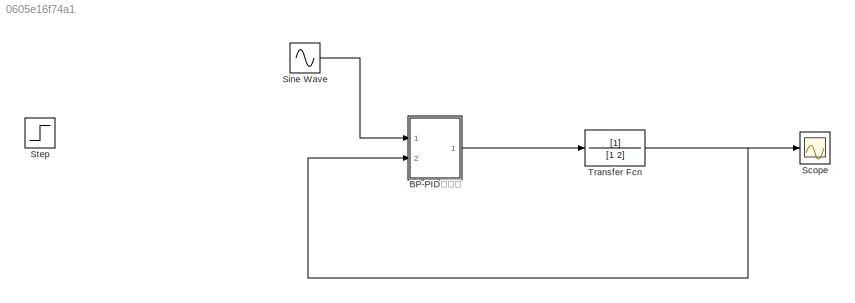
MODEL slx_0605e16f74a1
KIND model
CONFIG AbsTol = auto
CONFIG EnableMultiTasking = on
CONFIG FixedStep = 0.01
CONFIG MaxStep = auto
CONFIG MinStep = auto
CONFIG RelTol = 1e-3
CONFIG SampleTimeConstraint = Unconstrained
CONFIG Solver = FixedStepAuto
CONFIG SolverName = FixedStepAuto
CONFIG StartTime = 0.0
CONFIG StopTime = 500
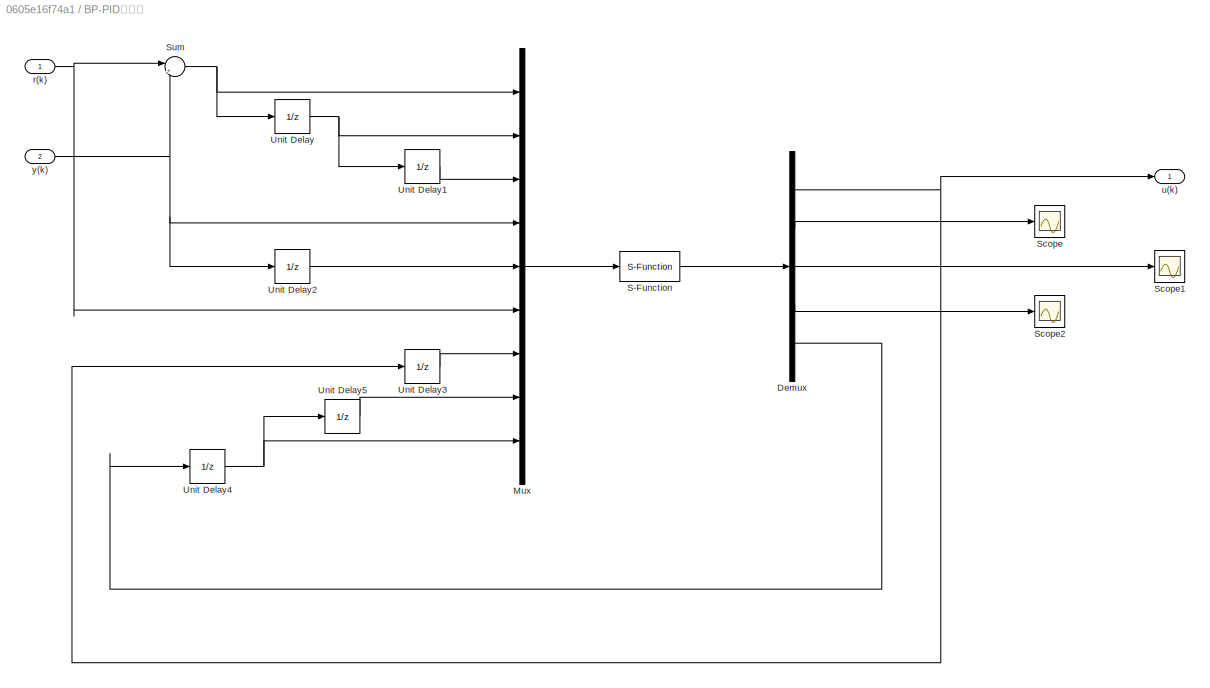
BLOCK [SubSystem] BP-PID控制器
  Ports = [2, 1]
  RequestExecContextInheritance = off
BLOCK [Demux] BP-PID控制器/Demux
  DisplayOption = bar
  Outputs = [1 1 1 1 48]
  Ports = [1, 5]
BLOCK [Mux] BP-PID控制器/Mux
  DisplayOption = bar
  Inputs = 9
  Ports = [9, 1]
BLOCK [S-Function] BP-PID控制器/S-Function
  EnableBusSupport = off
  FunctionName = nnbp
  Parameters = T,nh,xite,alfa
  Ports = [1, 1]
  SFcnIsStateOwnerBlock = off
  SFunctionDeploymentMode = off
BLOCK [Scope] BP-PID控制器/Scope
  Floating = off
  NumInputPorts = 1
  Ports = [1]
  ScopeSpecificationString = Simulink.scopes.TimeScopeBlockCfg('CurrentConfiguration', extmgr.ConfigurationSet(extmgr.Configuration('Core','General UI',true),extmgr.Configuration('Core','Source UI',true),extmgr.Configuration('Sources','WiredSimulink',true,'DataLoggingVariableName','ScopeData1'),extmgr.Configuration('Visuals','Time Domain',true,'SerializedDisplays',{struct('MinYLimReal','0.4993','MaxYLimReal','0.50008','YLabel...<+1389ch>
BLOCK [Scope] BP-PID控制器/Scope1
  Floating = off
  NumInputPorts = 1
  Ports = [1]
  ScopeSpecificationString = Simulink.scopes.TimeScopeBlockCfg('CurrentConfiguration', extmgr.ConfigurationSet(extmgr.Configuration('Core','General UI',true),extmgr.Configuration('Core','Source UI',true),extmgr.Configuration('Sources','WiredSimulink',true,'DataLoggingVariableName','ScopeData2'),extmgr.Configuration('Visuals','Time Domain',true,'SerializedDisplays',{struct('MinYLimReal','-0.06235','MaxYLimReal','0.56248','YLab...<+1395ch>
BLOCK [Scope] BP-PID控制器/Scope2
  Floating = off
  NumInputPorts = 1
  Ports = [1]
  ScopeSpecificationString = Simulink.scopes.TimeScopeBlockCfg('CurrentConfiguration', extmgr.ConfigurationSet(extmgr.Configuration('Core','General UI',true),extmgr.Configuration('Core','Source UI',true),extmgr.Configuration('Sources','WiredSimulink',true,'DataLoggingVariableName','ScopeData3'),extmgr.Configuration('Visuals','Time Domain',true,'SerializedDisplays',{struct('MinYLimReal','0.4','MaxYLimReal','0.6','YLabelReal','...<+1361ch>
BLOCK [Sum] BP-PID控制器/Sum
  IconShape = round
  InputSameDT = off
  Inputs = |+-
  OutDataTypeStr = Inherit: Inherit via internal rule
  Ports = [2, 1]
  SaturateOnIntegerOverflow = off
BLOCK [UnitDelay] BP-PID控制器/Unit Delay
  HasFrameUpgradeWarning = on
  SampleTime = -1
BLOCK [UnitDelay] BP-PID控制器/Unit Delay1
  HasFrameUpgradeWarning = on
  SampleTime = -1
BLOCK [UnitDelay] BP-PID控制器/Unit Delay2
  HasFrameUpgradeWarning = on
  SampleTime = -1
BLOCK [UnitDelay] BP-PID控制器/Unit Delay3
  HasFrameUpgradeWarning = on
  SampleTime = -1
BLOCK [UnitDelay] BP-PID控制器/Unit Delay4
  HasFrameUpgradeWarning = on
  SampleTime = -1
BLOCK [UnitDelay] BP-PID控制器/Unit Delay5
  HasFrameUpgradeWarning = on
  SampleTime = -1
BLOCK [Inport] BP-PID控制器/r(k)
  IconDisplay = Port number
BLOCK [Outport] BP-PID控制器/u(k)
  IconDisplay = Port number
BLOCK [Inport] BP-PID控制器/y(k)
  IconDisplay = Port number
  Port = 2
BLOCK [Scope] Scope
  Floating = off
  NumInputPorts = 1
  Ports = [1]
  ScopeSpecificationString = Simulink.scopes.TimeScopeBlockCfg('CurrentConfiguration', extmgr.ConfigurationSet(extmgr.Configuration('Core','General UI',true),extmgr.Configuration('Core','Source UI',true),extmgr.Configuration('Sources','WiredSimulink',true),extmgr.Configuration('Visuals','Time Domain',true,'SerializedDisplays',{struct('MinYLimReal','-1.72121','MaxYLimReal','1.3484','YLabelReal','','MinYLimMag','0.00000','MaxYL...<+1454ch>
BLOCK [Sin] Sine Wave
  Frequency = 2
  Ports = [0, 1]
  SampleTime = 0
BLOCK [Step] Step
  SampleTime = 0
BLOCK [TransferFcn] Transfer Fcn
  Denominator = [1  2]
NET BP-PID控制器/Demux:1 -> BP-PID控制器/Unit Delay3:1, BP-PID控制器/u(k):1
LINE BP-PID控制器/Demux:2 -> BP-PID控制器/Scope:1
LINE BP-PID控制器/Demux:3 -> BP-PID控制器/Scope1:1
LINE BP-PID控制器/Demux:4 -> BP-PID控制器/Scope2:1
LINE BP-PID控制器/Demux:5 -> BP-PID控制器/Unit Delay4:1
LINE BP-PID控制器/Mux:1 -> BP-PID控制器/S-Function:1
LINE BP-PID控制器/S-Function:1 -> BP-PID控制器/Demux:1
NET BP-PID控制器/Sum:1 -> BP-PID控制器/Mux:1, BP-PID控制器/Unit Delay:1
LINE BP-PID控制器/Unit Delay1:1 -> BP-PID控制器/Mux:3
LINE BP-PID控制器/Unit Delay2:1 -> BP-PID控制器/Mux:5
LINE BP-PID控制器/Unit Delay3:1 -> BP-PID控制器/Mux:7
NET BP-PID控制器/Unit Delay4:1 -> BP-PID控制器/Mux:9, BP-PID控制器/Unit Delay5:1
LINE BP-PID控制器/Unit Delay5:1 -> BP-PID控制器/Mux:8
NET BP-PID控制器/Unit Delay:1 -> BP-PID控制器/Mux:2, BP-PID控制器/Unit Delay1:1
NET BP-PID控制器/r(k):1 -> BP-PID控制器/Mux:6, BP-PID控制器/Sum:1
NET BP-PID控制器/y(k):1 -> BP-PID控制器/Mux:4, BP-PID控制器/Sum:2, BP-PID控制器/Unit Delay2:1
LINE BP-PID控制器:1 -> Transfer Fcn:1
LINE Sine Wave:1 -> BP-PID控制器:1
NET Transfer Fcn:1 -> BP-PID控制器:2, Scope:1
note: NET lines group one-source signal fan-out (src -> all destinations, sorted); 1:1 wires keep LINE
